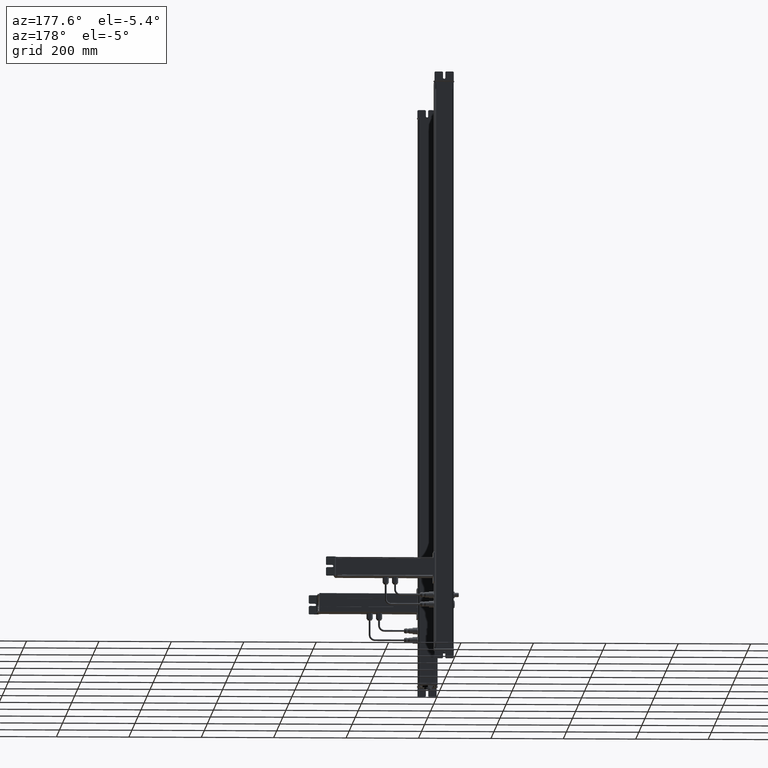
[diagram: clean part render]
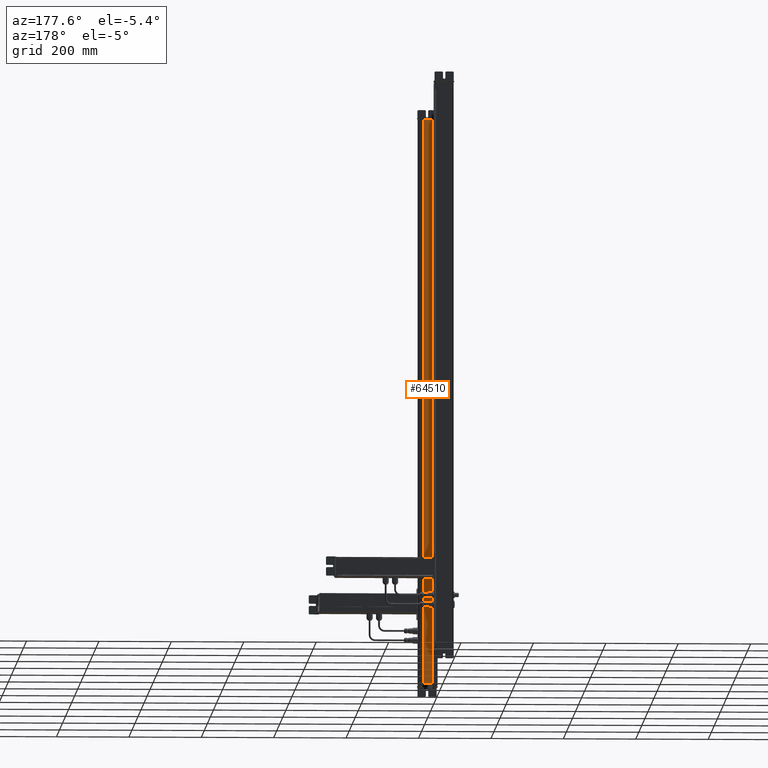
[diagram: same view with one face highlighted and labeled with its STEP entity id]
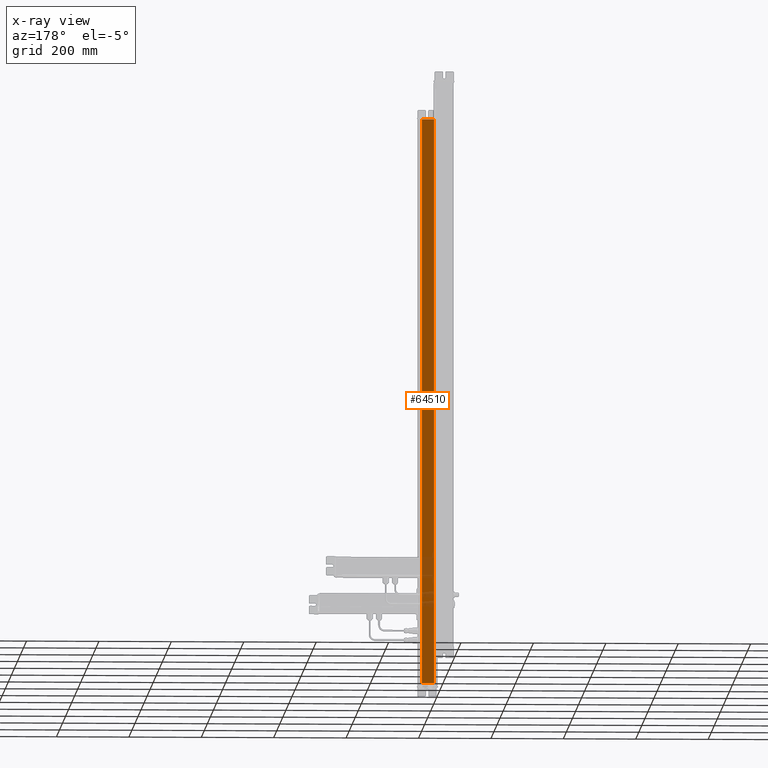
[diagram: x-ray of the same camera — body ghosted, the highlighted face saturated]
A machine part, auxiliary view. The second image highlights one B-rep face of the part: STEP entity #64510.
The next image is the same camera in x-ray: the body ghosted, the highlighted face saturated — about 10% of this face is hidden behind the body in this view.
In plain terms, the highlighted planar face has unit normal (0, 1, 0).
Its self-contained STEP definition (entity closure, byte-faithful):
#64427=CARTESIAN_POINT('Vertex',(622.718933105,180.560203323,0.)) ;
#64430=CARTESIAN_POINT('Line Origine',(639.443450928,180.560203323,0.)) ;
#64434=CARTESIAN_POINT('Vertex',(656.16796875,180.560203323,0.)) ;
#64467=CARTESIAN_POINT('Vertex',(622.718933105,180.560203323,1562.)) ;
#64470=CARTESIAN_POINT('Line Origine',(622.718933105,180.560203323,781.)) ;
#64487=CARTESIAN_POINT('Axis2P3D Location',(656.16796875,180.560203323,0.)) ;
#64492=CARTESIAN_POINT('Line Origine',(656.16796875,180.560203323,781.)) ;
#64496=CARTESIAN_POINT('Vertex',(656.16796875,180.560203323,1562.)) ;
#64499=CARTESIAN_POINT('Line Origine',(639.443450928,180.560203323,1562.)) ;
#64431=DIRECTION('Vector Direction',(-1.,0.,0.)) ;
#64471=DIRECTION('Vector Direction',(0.,0.,1.)) ;
#64488=DIRECTION('Axis2P3D Direction',(-0.,1.,0.)) ;
#64489=DIRECTION('Axis2P3D XDirection',(-1.,-0.,0.)) ;
#64493=DIRECTION('Vector Direction',(0.,0.,1.)) ;
#64500=DIRECTION('Vector Direction',(-1.,0.,0.)) ;
#64490=AXIS2_PLACEMENT_3D('Plane Axis2P3D',#64487,#64488,#64489) ;
#64505=ORIENTED_EDGE('',*,*,#64498,.F.) ;
#64506=ORIENTED_EDGE('',*,*,#64436,.F.) ;
#64507=ORIENTED_EDGE('',*,*,#64474,.T.) ;
#64508=ORIENTED_EDGE('',*,*,#64503,.F.) ;
#64432=VECTOR('Line Direction',#64431,1.) ;
#64472=VECTOR('Line Direction',#64471,1.) ;
#64494=VECTOR('Line Direction',#64493,1.) ;
#64501=VECTOR('Line Direction',#64500,1.) ;
#64510=ADVANCED_FACE('Body.3',(#64509),#64491,.T.) ;
#64436=EDGE_CURVE('',#64428,#64435,#64433,.F.) ;
#64474=EDGE_CURVE('',#64428,#64468,#64473,.T.) ;
#64498=EDGE_CURVE('',#64435,#64497,#64495,.T.) ;
#64503=EDGE_CURVE('',#64497,#64468,#64502,.T.) ;
#64504=EDGE_LOOP('',(#64505,#64506,#64507,#64508)) ;
#64509=FACE_OUTER_BOUND('',#64504,.T.) ;
#64433=LINE('Line',#64430,#64432) ;
#64473=LINE('Line',#64470,#64472) ;
#64495=LINE('Line',#64492,#64494) ;
#64502=LINE('Line',#64499,#64501) ;
#64491=PLANE('Plane',#64490) ;
#64428=VERTEX_POINT('',#64427) ;
#64435=VERTEX_POINT('',#64434) ;
#64468=VERTEX_POINT('',#64467) ;
#64497=VERTEX_POINT('',#64496) ;